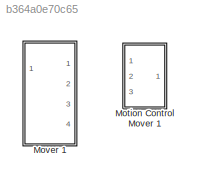
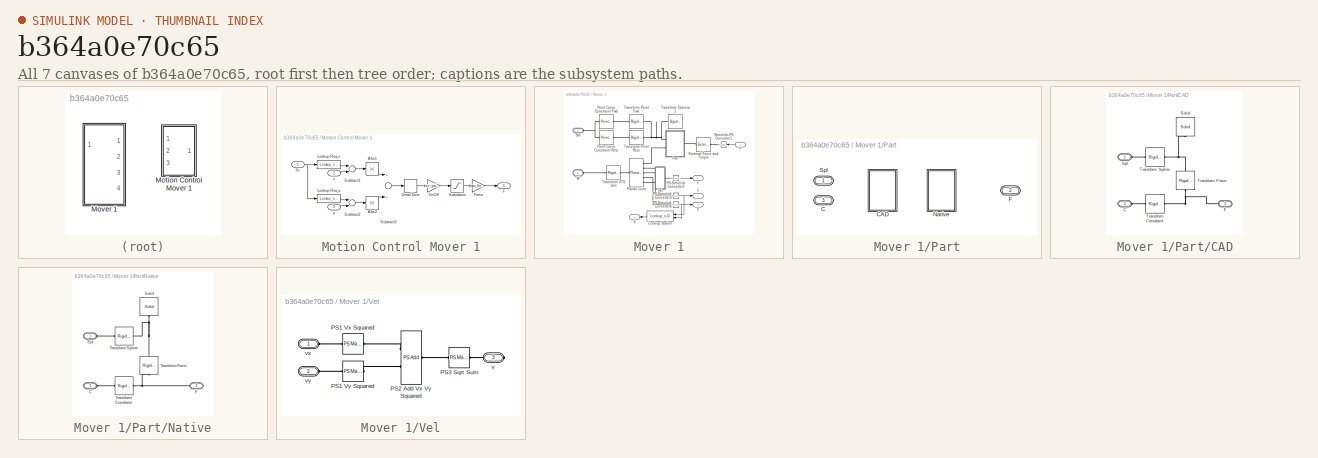
[diagram: thumbnail index - all 7 canvases of the model, root first then tree order]
MODEL slx_b364a0e70c65
KIND library
CONFIG AbsTol = auto
CONFIG EnableMultiTasking = off
CONFIG FixedStep = auto
CONFIG MaxStep = auto
CONFIG MinStep = auto
CONFIG RelTol = 1e-3
CONFIG SampleTimeConstraint = Unconstrained
CONFIG Solver = VariableStepAuto
CONFIG SolverName = VariableStepAuto
CONFIG StartTime = 0.0
CONFIG StopTime = 10.0
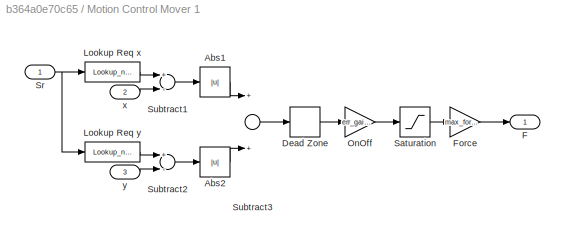
BLOCK [SubSystem] Motion Control Mover 1
  Ports = [3, 1]
  RequestExecContextInheritance = off
BLOCK [Abs] Motion Control Mover 1/Abs1
  SaturateOnIntegerOverflow = off
BLOCK [Abs] Motion Control Mover 1/Abs2
  SaturateOnIntegerOverflow = off
BLOCK [DeadZone] Motion Control Mover 1/Dead Zone
  LowerValue = 0
  UpperValue = dead_zone
BLOCK [Outport] Motion Control Mover 1/F
  IconDisplay = Port number
BLOCK [Gain] Motion Control Mover 1/Force
  Gain = max_force
  OutDataTypeStr = Inherit: Inherit via internal rule
  ParamDataTypeStr = Inherit: Inherit via internal rule
  SaturateOnIntegerOverflow = off
BLOCK [Lookup_n-D] Motion Control Mover 1/Lookup Req x
  BreakpointsForDimension1 = station_data(:,1)
  InternalRulePriority = Speed
  NumberOfTableDimensions = 1
  Ports = [1, 1]
  RndMeth = Simplest
  Table = station_data(:,2)
BLOCK [Lookup_n-D] Motion Control Mover 1/Lookup Req y
  BreakpointsForDimension1 = station_data(:,1)
  InternalRulePriority = Speed
  NumberOfTableDimensions = 1
  Ports = [1, 1]
  RndMeth = Simplest
  Table = station_data(:,3)
BLOCK [Gain] Motion Control Mover 1/OnOff
  Gain = err_gain_on_off
  OutDataTypeStr = Inherit: Inherit via internal rule
  ParamDataTypeStr = Inherit: Inherit via internal rule
  SaturateOnIntegerOverflow = off
BLOCK [Saturate] Motion Control Mover 1/Saturation
  InputPortMap = u0
  Ports = [1, 1]
  UpperLimit = 1
BLOCK [Inport] Motion Control Mover 1/Sr
  IconDisplay = Port number
BLOCK [Sum] Motion Control Mover 1/Subtract1
  InputSameDT = off
  Inputs = +-
  OutDataTypeStr = Inherit: Inherit via internal rule
  Ports = [2, 1]
  SaturateOnIntegerOverflow = off
BLOCK [Sum] Motion Control Mover 1/Subtract2
  InputSameDT = off
  Inputs = +-
  OutDataTypeStr = Inherit: Inherit via internal rule
  Ports = [2, 1]
  SaturateOnIntegerOverflow = off
BLOCK [Sum] Motion Control Mover 1/Subtract3
  InputSameDT = off
  OutDataTypeStr = Inherit: Inherit via internal rule
  Ports = [2, 1]
  SaturateOnIntegerOverflow = off
BLOCK [Inport] Motion Control Mover 1/x
  IconDisplay = Port number
  Port = 2
BLOCK [Inport] Motion Control Mover 1/y
  IconDisplay = Port number
  Port = 3
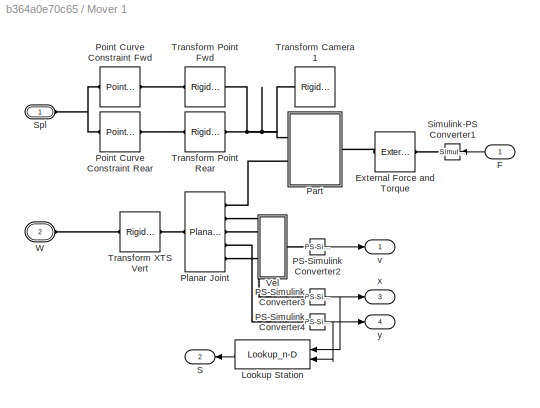
BLOCK [SubSystem] Mover 1
  Ports = [1, 4, 0, 0, 0, 2]
  RequestExecContextInheritance = off
  Tag = PublishSubsystem
BLOCK [Reference] Mover 1/External Force and Torque  REF=sm_lib/Forces and
Torques/External Force
and Torque
  Ports = [0, 0, 0, 0, 0, 1, 1]
  SourceBlock = sm_lib/Forces and\nTorques/External Force\nand Torque
  SourceProductBaseCode = MS
  SourceProductName = Simscape Multibody
  SourceType = External Force\nand Torque
BLOCK [Inport] Mover 1/F
  IconDisplay = Port number
BLOCK [Lookup_n-D] Mover 1/Lookup Station
  BreakpointsForDimension1 = station_data_x
  BreakpointsForDimension2 = station_data_y
  InternalRulePriority = Speed
  InterpMethod = Nearest
  Ports = [2, 1]
  RndMeth = Simplest
  Table = station_data_o'
BLOCK [Reference] Mover 1/PS-Simulink Converter2  REF=nesl_utility/PS-Simulink
Converter
  Ports = [0, 1, 0, 0, 0, 1]
  SourceBlock = nesl_utility/PS-Simulink\nConverter
  SourceProductBaseCode = SS
  SourceProductName = Simscape
  SourceType = PS-Simulink\nConverter
BLOCK [Reference] Mover 1/PS-Simulink Converter3  REF=nesl_utility/PS-Simulink
Converter
  Ports = [0, 1, 0, 0, 0, 1]
  SourceBlock = nesl_utility/PS-Simulink\nConverter
  SourceProductBaseCode = SS
  SourceProductName = Simscape
  SourceType = PS-Simulink\nConverter
BLOCK [Reference] Mover 1/PS-Simulink Converter4  REF=nesl_utility/PS-Simulink
Converter
  Ports = [0, 1, 0, 0, 0, 1]
  SourceBlock = nesl_utility/PS-Simulink\nConverter
  SourceProductBaseCode = SS
  SourceProductName = Simscape
  SourceType = PS-Simulink\nConverter
BLOCK [SubSystem] Mover 1/Part
  LabelModeActiveChoice = Native
  Ports = [0, 0, 0, 0, 0, 2, 1]
  RequestExecContextInheritance = off
  Variant = on
  VariantControlMode = Label
BLOCK [PMIOPort] Mover 1/Part/C
  Port = 3
  Side = Left
BLOCK [SubSystem] Mover 1/Part/CAD
  Ports = [0, 0, 0, 0, 0, 2, 1]
  RequestExecContextInheritance = off
  VariantControl = CAD
BLOCK [PMIOPort] Mover 1/Part/CAD/C
  Port = 3
  Side = Left
BLOCK [PMIOPort] Mover 1/Part/CAD/F
  Port = 2
  Side = Right
BLOCK [Reference] Mover 1/Part/CAD/Solid  REF=sm_lib/Body Elements/Solid
  Ports = [0, 0, 0, 0, 0, 0, 1]
  SourceBlock = sm_lib/Body Elements/Solid
  SourceProductBaseCode = MS
  SourceProductName = Simscape Multibody
  SourceType = Solid
BLOCK [PMIOPort] Mover 1/Part/CAD/Spl
  Side = Left
BLOCK [Reference] Mover 1/Part/CAD/Transform Constraint  REF=sm_lib/Frames and
Transforms/Rigid
Transform
  Ports = [0, 0, 0, 0, 0, 1, 1]
  SourceBlock = sm_lib/Frames and\nTransforms/Rigid\nTransform
  SourceProductBaseCode = MS
  SourceProductName = Simscape Multibody
  SourceType = Rigid\nTransform
BLOCK [Reference] Mover 1/Part/CAD/Transform Force  REF=sm_lib/Frames and
Transforms/Rigid
Transform
  Ports = [0, 0, 0, 0, 0, 1, 1]
  SourceBlock = sm_lib/Frames and\nTransforms/Rigid\nTransform
  SourceProductBaseCode = MS
  SourceProductName = Simscape Multibody
  SourceType = Rigid\nTransform
BLOCK [Reference] Mover 1/Part/CAD/Transform Spline  REF=sm_lib/Frames and
Transforms/Rigid
Transform
  Ports = [0, 0, 0, 0, 0, 1, 1]
  SourceBlock = sm_lib/Frames and\nTransforms/Rigid\nTransform
  SourceProductBaseCode = MS
  SourceProductName = Simscape Multibody
  SourceType = Rigid\nTransform
BLOCK [PMIOPort] Mover 1/Part/F
  Port = 2
  Side = Right
BLOCK [SubSystem] Mover 1/Part/Native
  Ports = [0, 0, 0, 0, 0, 2, 1]
  RequestExecContextInheritance = off
  VariantControl = Native
BLOCK [PMIOPort] Mover 1/Part/Native/C
  Port = 3
  Side = Left
BLOCK [PMIOPort] Mover 1/Part/Native/F
  Port = 2
  Side = Right
BLOCK [Reference] Mover 1/Part/Native/Solid  REF=sm_lib/Body Elements/Solid
  Ports = [0, 0, 0, 0, 0, 0, 1]
  SourceBlock = sm_lib/Body Elements/Solid
  SourceProductBaseCode = MS
  SourceProductName = Simscape Multibody
  SourceType = Solid
BLOCK [PMIOPort] Mover 1/Part/Native/Spl
  Side = Left
BLOCK [Reference] Mover 1/Part/Native/Transform Constraint  REF=sm_lib/Frames and
Transforms/Rigid
Transform
  Ports = [0, 0, 0, 0, 0, 1, 1]
  SourceBlock = sm_lib/Frames and\nTransforms/Rigid\nTransform
  SourceProductBaseCode = MS
  SourceProductName = Simscape Multibody
  SourceType = Rigid\nTransform
BLOCK [Reference] Mover 1/Part/Native/Transform Force  REF=sm_lib/Frames and
Transforms/Rigid
Transform
  Ports = [0, 0, 0, 0, 0, 1, 1]
  SourceBlock = sm_lib/Frames and\nTransforms/Rigid\nTransform
  SourceProductBaseCode = MS
  SourceProductName = Simscape Multibody
  SourceType = Rigid\nTransform
BLOCK [Reference] Mover 1/Part/Native/Transform Spline  REF=sm_lib/Frames and
Transforms/Rigid
Transform
  Ports = [0, 0, 0, 0, 0, 1, 1]
  SourceBlock = sm_lib/Frames and\nTransforms/Rigid\nTransform
  SourceProductBaseCode = MS
  SourceProductName = Simscape Multibody
  SourceType = Rigid\nTransform
BLOCK [PMIOPort] Mover 1/Part/Spl
  Side = Left
BLOCK [Reference] Mover 1/Planar Joint  REF=sm_lib/Joints/Planar Joint
  Ports = [0, 0, 0, 0, 0, 1, 5]
  SourceBlock = sm_lib/Joints/Planar Joint
  SourceProductBaseCode = MS
  SourceProductName = Simscape Multibody
  SourceType = Planar Joint
BLOCK [Reference] Mover 1/Point Curve Constraint Fwd  REF=sm_lib/Constraints/Point on Curve
Constraint
  Ports = [0, 0, 0, 0, 0, 1, 1]
  SourceBlock = sm_lib/Constraints/Point on Curve\nConstraint
  SourceProductBaseCode = MS
  SourceProductName = Simscape Multibody
  SourceType = Point on Curve\nConstraint
BLOCK [Reference] Mover 1/Point Curve Constraint Rear  REF=sm_lib/Constraints/Point on Curve
Constraint
  Ports = [0, 0, 0, 0, 0, 1, 1]
  SourceBlock = sm_lib/Constraints/Point on Curve\nConstraint
  SourceProductBaseCode = MS
  SourceProductName = Simscape Multibody
  SourceType = Point on Curve\nConstraint
BLOCK [Outport] Mover 1/S
  IconDisplay = Port number
  Port = 2
BLOCK [Reference] Mover 1/Simulink-PS Converter1  REF=nesl_utility/Simulink-PS
Converter
  Ports = [1, 0, 0, 0, 0, 0, 1]
  SourceBlock = nesl_utility/Simulink-PS\nConverter
  SourceProductBaseCode = SS
  SourceProductName = Simscape
  SourceType = Simulink-PS\nConverter
BLOCK [PMIOPort] Mover 1/Spl
  Side = Left
BLOCK [Reference] Mover 1/Transform Camera 1  REF=sm_lib/Frames and
Transforms/Rigid
Transform
  Ports = [0, 0, 0, 0, 0, 1, 1]
  SourceBlock = sm_lib/Frames and\nTransforms/Rigid\nTransform
  SourceProductBaseCode = MS
  SourceProductName = Simscape Multibody
  SourceType = Rigid\nTransform
BLOCK [Reference] Mover 1/Transform Point Fwd  REF=sm_lib/Frames and
Transforms/Rigid
Transform
  Ports = [0, 0, 0, 0, 0, 1, 1]
  SourceBlock = sm_lib/Frames and\nTransforms/Rigid\nTransform
  SourceProductBaseCode = MS
  SourceProductName = Simscape Multibody
  SourceType = Rigid\nTransform
BLOCK [Reference] Mover 1/Transform Point Rear  REF=sm_lib/Frames and
Transforms/Rigid
Transform
  Ports = [0, 0, 0, 0, 0, 1, 1]
  SourceBlock = sm_lib/Frames and\nTransforms/Rigid\nTransform
  SourceProductBaseCode = MS
  SourceProductName = Simscape Multibody
  SourceType = Rigid\nTransform
BLOCK [Reference] Mover 1/Transform XTS Vert  REF=sm_lib/Frames and
Transforms/Rigid
Transform
  Ports = [0, 0, 0, 0, 0, 1, 1]
  SourceBlock = sm_lib/Frames and\nTransforms/Rigid\nTransform
  SourceProductBaseCode = MS
  SourceProductName = Simscape Multibody
  SourceType = Rigid\nTransform
BLOCK [SubSystem] Mover 1/Vel
  Ports = [0, 0, 0, 0, 0, 2, 1]
  RequestExecContextInheritance = off
BLOCK [Reference] Mover 1/Vel/PS1 Vx Squared  REF=fl_lib/Physical Signals/Functions/PS Math Function
  Ports = [0, 0, 0, 0, 0, 1, 1]
  SourceBlock = fl_lib/Physical Signals/Functions/PS Math Function
  SourceProductBaseCode = SS
  SourceProductName = Simscape
  SourceType = PS Math Function
BLOCK [Reference] Mover 1/Vel/PS1 Vy Squared  REF=fl_lib/Physical Signals/Functions/PS Math Function
  Ports = [0, 0, 0, 0, 0, 1, 1]
  SourceBlock = fl_lib/Physical Signals/Functions/PS Math Function
  SourceProductBaseCode = SS
  SourceProductName = Simscape
  SourceType = PS Math Function
BLOCK [Reference] Mover 1/Vel/PS2 Add Vx Vy Squared  REF=fl_lib/Physical Signals/Functions/PS Add
  Ports = [0, 0, 0, 0, 0, 2, 1]
  SourceBlock = fl_lib/Physical Signals/Functions/PS Add
  SourceProductBaseCode = SS
  SourceProductName = Simscape
  SourceType = PS Add
BLOCK [Reference] Mover 1/Vel/PS3 Sqrt Sum  REF=fl_lib/Physical Signals/Functions/PS Math Function
  Ports = [0, 0, 0, 0, 0, 1, 1]
  SourceBlock = fl_lib/Physical Signals/Functions/PS Math Function
  SourceProductBaseCode = SS
  SourceProductName = Simscape
  SourceType = PS Math Function
BLOCK [PMIOPort] Mover 1/Vel/v
  Port = 3
  Side = Right
BLOCK [PMIOPort] Mover 1/Vel/vx
  Side = Left
BLOCK [PMIOPort] Mover 1/Vel/vy
  Port = 2
  Side = Left
BLOCK [PMIOPort] Mover 1/W
  Port = 2
  Side = Left
BLOCK [Outport] Mover 1/v
  IconDisplay = Port number
BLOCK [Outport] Mover 1/x
  IconDisplay = Port number
  Port = 3
BLOCK [Outport] Mover 1/y
  IconDisplay = Port number
  Port = 4
LINE Motion Control Mover 1/Abs1:1 -> Motion Control Mover 1/Subtract3:1
LINE Motion Control Mover 1/Abs2:1 -> Motion Control Mover 1/Subtract3:2
LINE Motion Control Mover 1/Dead Zone:1 -> Motion Control Mover 1/OnOff:1
LINE Motion Control Mover 1/Force:1 -> Motion Control Mover 1/F:1
LINE Motion Control Mover 1/Lookup Req x:1 -> Motion Control Mover 1/Subtract1:1
LINE Motion Control Mover 1/Lookup Req y:1 -> Motion Control Mover 1/Subtract2:1
LINE Motion Control Mover 1/OnOff:1 -> Motion Control Mover 1/Saturation:1
LINE Motion Control Mover 1/Saturation:1 -> Motion Control Mover 1/Force:1
NET Motion Control Mover 1/Sr:1 -> Motion Control Mover 1/Lookup Req x:1, Motion Control Mover 1/Lookup Req y:1
LINE Motion Control Mover 1/Subtract1:1 -> Motion Control Mover 1/Abs1:1
LINE Motion Control Mover 1/Subtract2:1 -> Motion Control Mover 1/Abs2:1
LINE Motion Control Mover 1/Subtract3:1 -> Motion Control Mover 1/Dead Zone:1
LINE Motion Control Mover 1/x:1 -> Motion Control Mover 1/Subtract1:2
LINE Motion Control Mover 1/y:1 -> Motion Control Mover 1/Subtract2:2
note: NET lines group one-source signal fan-out (src -> all destinations, sorted); 1:1 wires keep LINE
